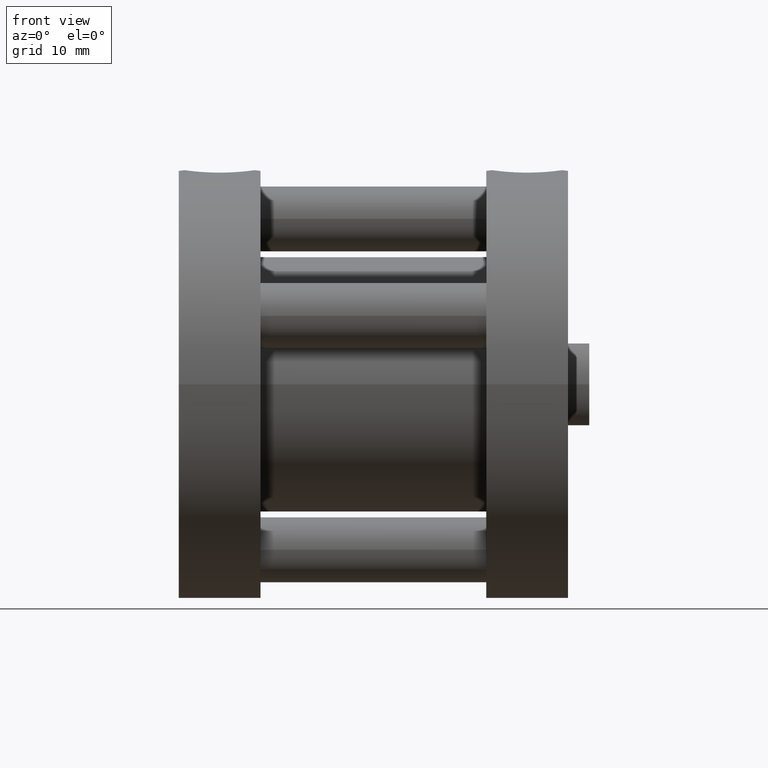
[diagram: clean part render]
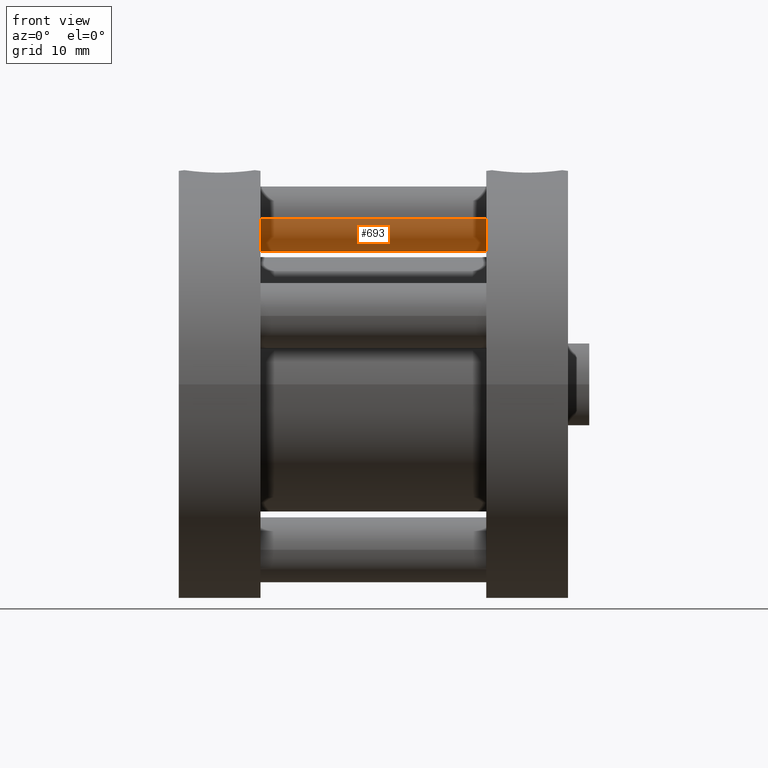
[diagram: same view with one face highlighted and labeled with its STEP entity id]
A machine part, front view. The second image highlights one B-rep face of the part: STEP entity #693.
In plain terms, the highlighted cylindrical surface (edge-blend (fillet) strip) has radius 5.08 mm, axis along (-1, 0, 0).
Its self-contained STEP definition (entity closure, byte-faithful):
#59 = CARTESIAN_POINT ( 'NONE',  ( 0.0000000000000000000, 0.0000000000000000000, 0.0000000000000000000 ) ) ;
#162 = EDGE_CURVE ( 'NONE', #3909, #1935, #2819, .T. ) ;
#410 = DIRECTION ( 'NONE',  ( 0.0000000000000000000, 1.000000000000000000, 0.0000000000000000000 ) ) ;
#540 = CYLINDRICAL_SURFACE ( 'NONE', #4461, 0.2000000000000000100 ) ;
#581 = EDGE_LOOP ( 'NONE', ( #4523, #4381, #1481, #2116 ) ) ;
#693 = ADVANCED_FACE ( 'CYL_0', ( #1582 ), #540, .T. ) ;
#731 = AXIS2_PLACEMENT_3D ( 'NONE', #1870, #4353, #2225 ) ;
#890 = EDGE_CURVE ( 'NONE', #3909, #1337, #3422, .T. ) ;
#1022 = AXIS2_PLACEMENT_3D ( 'NONE', #1624, #4111, #3512 ) ;
#1337 = VERTEX_POINT ( 'NONE', #3112 ) ;
#1405 = CIRCLE ( 'NONE', #731, 0.2000000000000000100 ) ;
#1416 = CARTESIAN_POINT ( 'NONE',  ( 2.449293598294706500E-017, 0.0000000000000000000, -0.2000000000000000100 ) ) ;
#1481 = ORIENTED_EDGE ( 'NONE', *, *, #2154, .F. ) ;
#1582 = FACE_OUTER_BOUND ( 'NONE', #581, .T. ) ;
#1624 = CARTESIAN_POINT ( 'NONE',  ( 0.0000000000000000000, 0.2180000000000000300, 0.0000000000000000000 ) ) ;
#1865 = CARTESIAN_POINT ( 'NONE',  ( 2.449293598294706500E-017, 0.2180000000000000300, -0.2000000000000000100 ) ) ;
#1870 = CARTESIAN_POINT ( 'NONE',  ( 0.0000000000000000000, 1.598000000000000100, 0.0000000000000000000 ) ) ;
#1935 = VERTEX_POINT ( 'NONE', #1865 ) ;
#2109 = CARTESIAN_POINT ( 'NONE',  ( 0.0000000000000000000, 0.2180000000000000300, 0.2000000000000000100 ) ) ;
#2116 = ORIENTED_EDGE ( 'NONE', *, *, #890, .F. ) ;
#2154 = EDGE_CURVE ( 'NONE', #1337, #4527, #1405, .T. ) ;
#2157 = CARTESIAN_POINT ( 'NONE',  ( 2.449293598294706500E-017, 1.598000000000000100, -0.2000000000000000100 ) ) ;
#2170 = DIRECTION ( 'NONE',  ( 0.0000000000000000000, 0.0000000000000000000, 1.000000000000000000 ) ) ;
#2225 = DIRECTION ( 'NONE',  ( 0.0000000000000000000, 0.0000000000000000000, 1.000000000000000000 ) ) ;
#2466 = DIRECTION ( 'NONE',  ( 0.0000000000000000000, 1.000000000000000000, 0.0000000000000000000 ) ) ;
#2819 = CIRCLE ( 'NONE', #1022, 0.2000000000000000100 ) ;
#2965 = VECTOR ( 'NONE', #3967, 39.37007874015748100 ) ;
#3087 = VECTOR ( 'NONE', #2466, 39.37007874015748100 ) ;
#3112 = CARTESIAN_POINT ( 'NONE',  ( 0.0000000000000000000, 1.598000000000000100, 0.2000000000000000100 ) ) ;
#3249 = CARTESIAN_POINT ( 'NONE',  ( 0.0000000000000000000, 0.0000000000000000000, 0.2000000000000000100 ) ) ;
#3422 = LINE ( 'NONE', #3249, #2965 ) ;
#3512 = DIRECTION ( 'NONE',  ( 0.0000000000000000000, 0.0000000000000000000, 1.000000000000000000 ) ) ;
#3814 = LINE ( 'NONE', #1416, #3087 ) ;
#3909 = VERTEX_POINT ( 'NONE', #2109 ) ;
#3922 = EDGE_CURVE ( 'NONE', #1935, #4527, #3814, .T. ) ;
#3967 = DIRECTION ( 'NONE',  ( 0.0000000000000000000, 1.000000000000000000, 0.0000000000000000000 ) ) ;
#4111 = DIRECTION ( 'NONE',  ( 0.0000000000000000000, 1.000000000000000000, 0.0000000000000000000 ) ) ;
#4353 = DIRECTION ( 'NONE',  ( 0.0000000000000000000, 1.000000000000000000, 0.0000000000000000000 ) ) ;
#4381 = ORIENTED_EDGE ( 'NONE', *, *, #3922, .T. ) ;
#4461 = AXIS2_PLACEMENT_3D ( 'NONE', #59, #410, #2170 ) ;
#4523 = ORIENTED_EDGE ( 'NONE', *, *, #162, .T. ) ;
#4527 = VERTEX_POINT ( 'NONE', #2157 ) ;